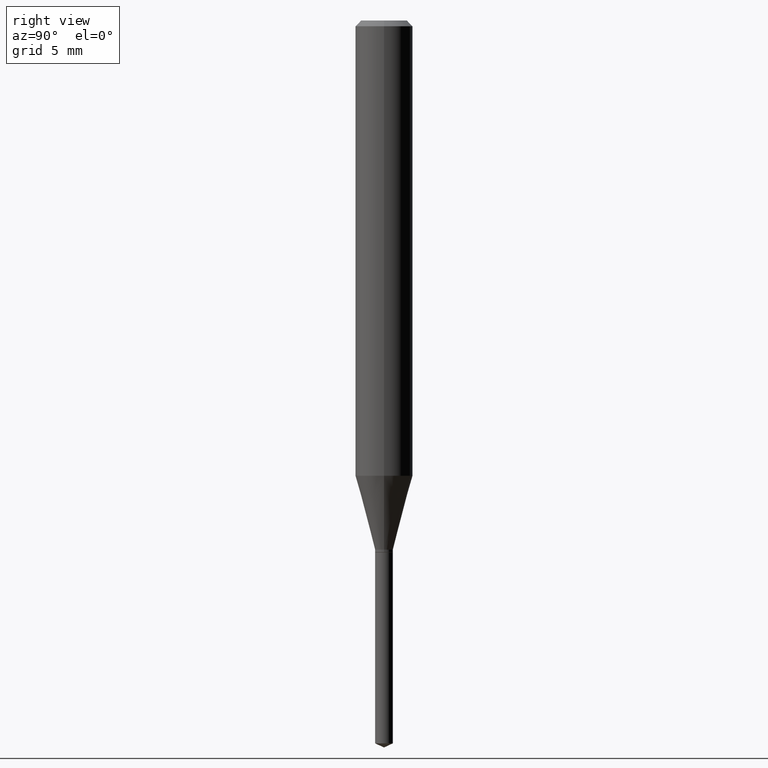
[diagram: clean part render]
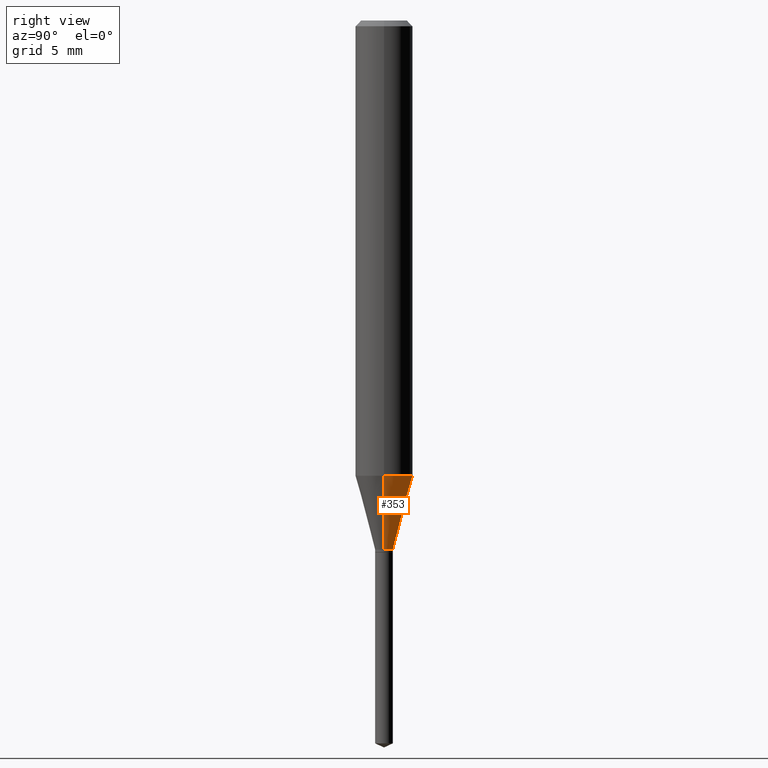
[diagram: same view with one face highlighted and labeled with its STEP entity id]
A machine part, right view. The second image highlights one B-rep face of the part: STEP entity #353.
In plain terms, the highlighted conical surface has half-angle 15 deg.
Its self-contained STEP definition (entity closure, byte-faithful):
#15 = ORIENTED_EDGE ( 'NONE', *, *, #46, .F. ) ;
#26 = ORIENTED_EDGE ( 'NONE', *, *, #30, .F. ) ;
#29 = VERTEX_POINT ( 'NONE', #326 ) ;
#30 = EDGE_CURVE ( 'NONE', #64, #382, #375, .T. ) ;
#31 = CARTESIAN_POINT ( 'NONE',  ( 0.01830000000000000029, -3.930011395001844240E-15, -1.088999999999999968 ) ) ;
#32 = EDGE_CURVE ( 'NONE', #29, #329, #33, .T. ) ;
#33 = LINE ( 'NONE', #371, #272 ) ;
#37 = CIRCLE ( 'NONE', #320, 0.01830000000000000029 ) ;
#46 = EDGE_CURVE ( 'NONE', #382, #329, #55, .T. ) ;
#55 = CIRCLE ( 'NONE', #303, 0.05905000000000010241 ) ;
#64 = VERTEX_POINT ( 'NONE', #108 ) ;
#85 = CARTESIAN_POINT ( 'NONE',  ( -0.05905000000000010241, -2.851659473211515038E-15, -0.9369189295915679727 ) ) ;
#108 = CARTESIAN_POINT ( 'NONE',  ( 0.01830000000000000029, -3.930011395001844240E-15, -1.088999999999999968 ) ) ;
#118 = AXIS2_PLACEMENT_3D ( 'NONE', #366, #467, #124 ) ;
#124 = DIRECTION ( 'NONE',  ( 1.000000000000000000, -6.982962677686258033E-15, 0.000000000000000000 ) ) ;
#150 = ORIENTED_EDGE ( 'NONE', *, *, #32, .T. ) ;
#170 = DIRECTION ( 'NONE',  ( -2.445468806185136597E-29, 3.491481338843145583E-15, 1.000000000000000000 ) ) ;
#202 = CARTESIAN_POINT ( 'NONE',  ( 2.291206016240548157E-29, -3.271234958677854531E-15, -0.9369189295915679727 ) ) ;
#212 = DIRECTION ( 'NONE',  ( 1.000000000000000000, -6.982962677686258033E-15, 0.000000000000000000 ) ) ;
#272 = VECTOR ( 'NONE', #288, 39.37007874015748854 ) ;
#273 = CARTESIAN_POINT ( 'NONE',  ( 0.05905000000000010241, -3.683578904795229057E-15, -0.9369189295915679727 ) ) ;
#283 = DIRECTION ( 'NONE',  ( 0.2588190451025211281, 1.565188264969622954E-15, 0.9659258262890679791 ) ) ;
#288 = DIRECTION ( 'NONE',  ( -0.2588190451025211281, 5.211531920934547886E-15, 0.9659258262890679791 ) ) ;
#296 = VECTOR ( 'NONE', #283, 39.37007874015748854 ) ;
#303 = AXIS2_PLACEMENT_3D ( 'NONE', #202, #356, #425 ) ;
#318 = FACE_OUTER_BOUND ( 'NONE', #342, .T. ) ;
#320 = AXIS2_PLACEMENT_3D ( 'NONE', #434, #170, #212 ) ;
#326 = CARTESIAN_POINT ( 'NONE',  ( -0.01830000000000000029, -3.680922560703194750E-15, -1.088999999999999968 ) ) ;
#328 = EDGE_CURVE ( 'NONE', #64, #29, #37, .T. ) ;
#329 = VERTEX_POINT ( 'NONE', #85 ) ;
#340 = CONICAL_SURFACE ( 'NONE', #118, 0.01830000000000000029, 0.2617993877991498519 ) ;
#342 = EDGE_LOOP ( 'NONE', ( #403, #150, #15, #26 ) ) ;
#353 = ADVANCED_FACE ( 'NONE', ( #318 ), #340, .T. ) ;
#356 = DIRECTION ( 'NONE',  ( -2.445468806185136597E-29, 3.491481338843145583E-15, 1.000000000000000000 ) ) ;
#366 = CARTESIAN_POINT ( 'NONE',  ( 2.663115529935613220E-29, -3.802223178000185445E-15, -1.088999999999999968 ) ) ;
#371 = CARTESIAN_POINT ( 'NONE',  ( -0.01830000000000000029, -3.672193857356087232E-15, -1.088999999999999968 ) ) ;
#375 = LINE ( 'NONE', #31, #296 ) ;
#382 = VERTEX_POINT ( 'NONE', #273 ) ;
#403 = ORIENTED_EDGE ( 'NONE', *, *, #328, .T. ) ;
#425 = DIRECTION ( 'NONE',  ( 1.000000000000000000, -6.982962677686268288E-15, 0.000000000000000000 ) ) ;
#434 = CARTESIAN_POINT ( 'NONE',  ( 2.663115529935613220E-29, -3.802223178000185445E-15, -1.088999999999999968 ) ) ;
#467 = DIRECTION ( 'NONE',  ( -2.445468806185136597E-29, 3.491481338843145583E-15, 1.000000000000000000 ) ) ;